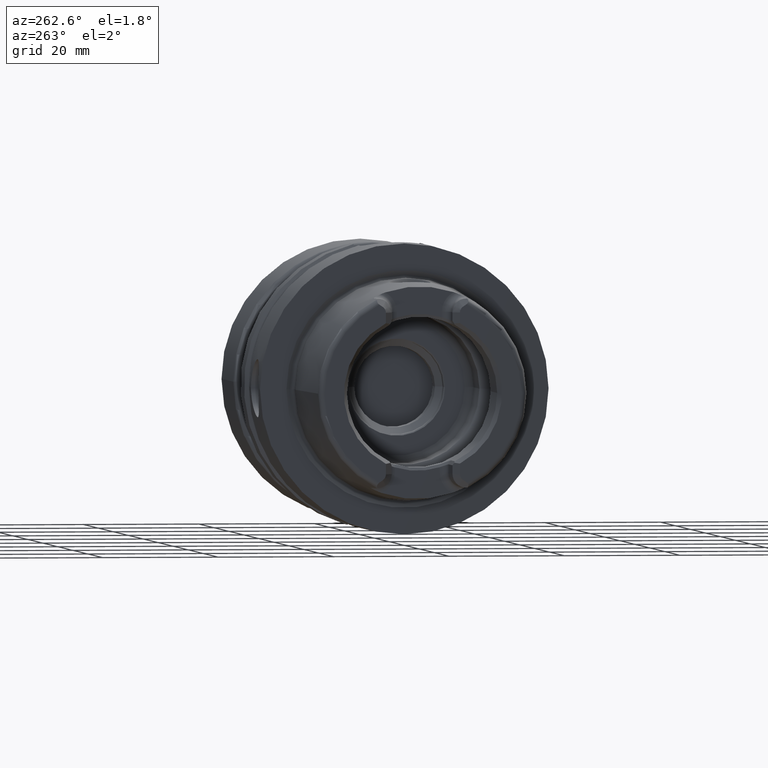
[diagram: clean part render]
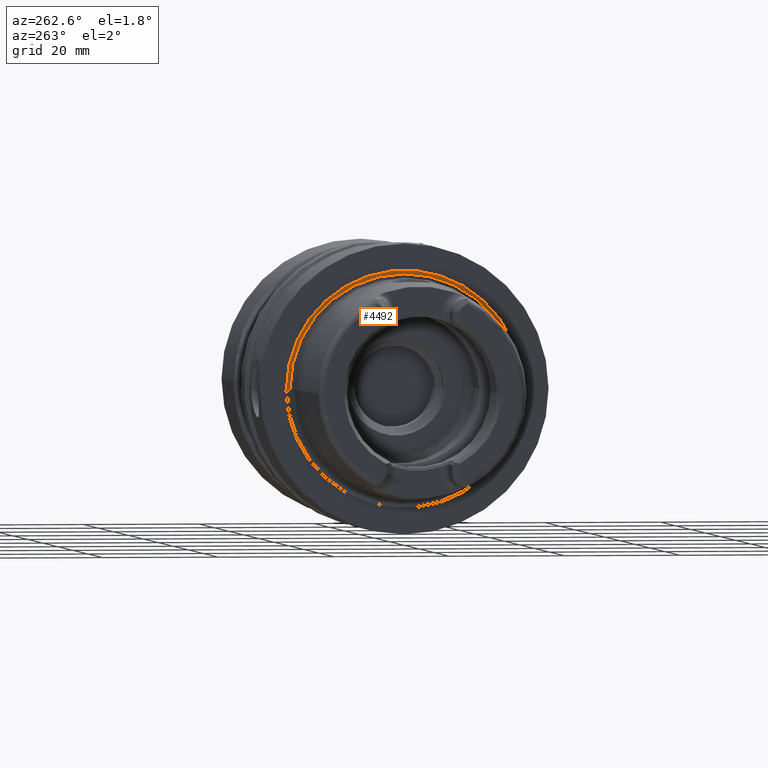
[diagram: same view with one face highlighted and labeled with its STEP entity id]
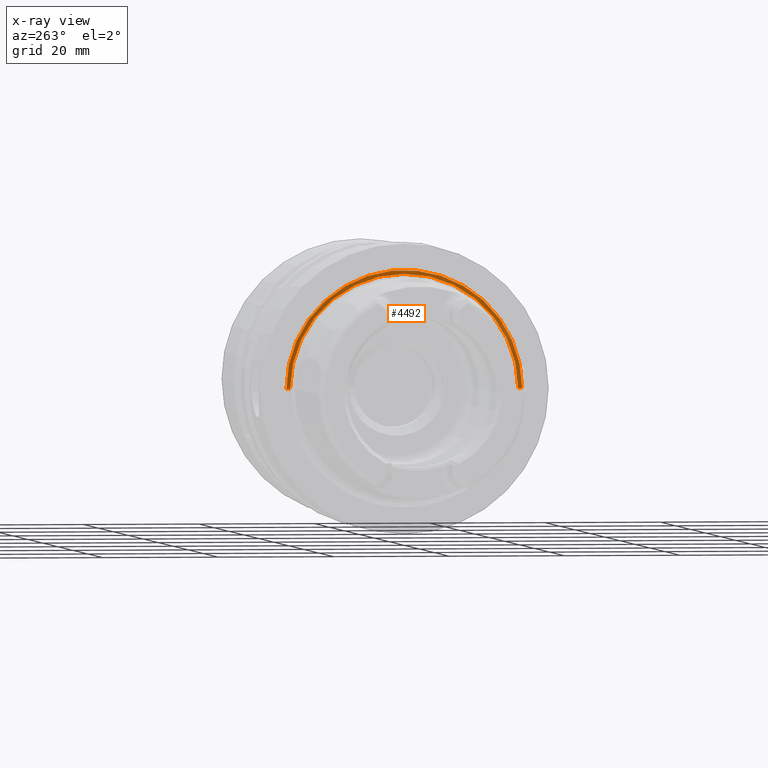
[diagram: x-ray of the same camera — body ghosted, the highlighted face saturated]
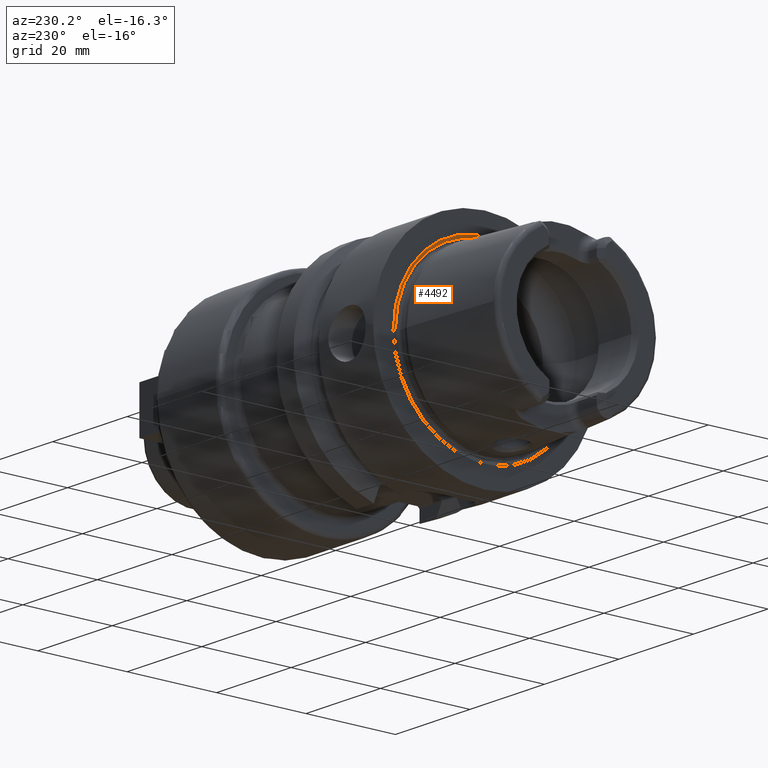
[diagram: same view with one face highlighted and labeled with its STEP entity id]
A machine part, auxiliary view. The second image highlights one B-rep face of the part: STEP entity #4492.
The next image is the same camera in x-ray: the body ghosted, the highlighted face saturated — about 19% of this face is hidden behind the body in this view.
A second angle (auxiliary view) of the same face is appended — the face is thin or edge-on in the first view.
In plain terms, the highlighted conical surface has half-angle 68.5 deg.
Its self-contained STEP definition (entity closure, byte-faithful):
#839=CARTESIAN_POINT('',(2.560809102655E-1,0.E0,0.E0));
#840=DIRECTION('',(-1.E0,0.E0,0.E0));
#841=DIRECTION('',(0.E0,-1.E0,0.E0));
#842=AXIS2_PLACEMENT_3D('',#839,#840,#841);
#859=DIRECTION('',(3.665012267243E-1,9.304175679820E-1,0.E0));
#860=VECTOR('',#859,6.987177438786E-1);
#861=CARTESIAN_POINT('',(0.E0,-2.04248E1,0.E0));
#862=LINE('',#861,#860);
#863=DIRECTION('',(3.665012267243E-1,-9.304175679820E-1,0.E0));
#864=VECTOR('',#863,6.987177438786E-1);
#865=CARTESIAN_POINT('',(0.E0,2.04248E1,0.E0));
#866=LINE('',#865,#864);
#877=CARTESIAN_POINT('',(0.E0,0.E0,0.E0));
#878=DIRECTION('',(-1.E0,0.E0,0.E0));
#879=DIRECTION('',(0.E0,-1.E0,0.E0));
#880=AXIS2_PLACEMENT_3D('',#877,#878,#879);
#2979=CARTESIAN_POINT('',(2.560809102655E-1,-1.977470073603E1,0.E0));
#2981=VERTEX_POINT('',#2979);
#2987=CARTESIAN_POINT('',(2.560809102655E-1,1.977470073603E1,0.E0));
#2989=VERTEX_POINT('',#2987);
#3003=CARTESIAN_POINT('',(0.E0,-2.04248E1,0.E0));
#3004=VERTEX_POINT('',#3003);
#3005=CARTESIAN_POINT('',(0.E0,2.04248E1,0.E0));
#3006=VERTEX_POINT('',#3005);
#4480=CARTESIAN_POINT('',(1.280404551328E-1,0.E0,0.E0));
#4481=DIRECTION('',(-1.E0,0.E0,0.E0));
#4482=DIRECTION('',(0.E0,1.E0,0.E0));
#4483=AXIS2_PLACEMENT_3D('',#4480,#4481,#4482);
#4484=CONICAL_SURFACE('',#4483,2.009975036802E1,6.85E1);
#4485=ORIENTED_EDGE('',*,*,#4470,.T.);
#4486=ORIENTED_EDGE('',*,*,#4447,.T.);
#4487=ORIENTED_EDGE('',*,*,#4474,.F.);
#4489=ORIENTED_EDGE('',*,*,#4488,.F.);
#4490=EDGE_LOOP('',(#4485,#4486,#4487,#4489));
#4491=FACE_OUTER_BOUND('',#4490,.F.);
#4492=ADVANCED_FACE('',(#4491),#4484,.F.);
#843=CIRCLE('',#842,1.977470073603E1);
#881=CIRCLE('',#880,2.04248E1);
#4447=EDGE_CURVE('',#2981,#2989,#843,.T.);
#4470=EDGE_CURVE('',#3004,#2981,#862,.T.);
#4474=EDGE_CURVE('',#3006,#2989,#866,.T.);
#4488=EDGE_CURVE('',#3004,#3006,#881,.T.);